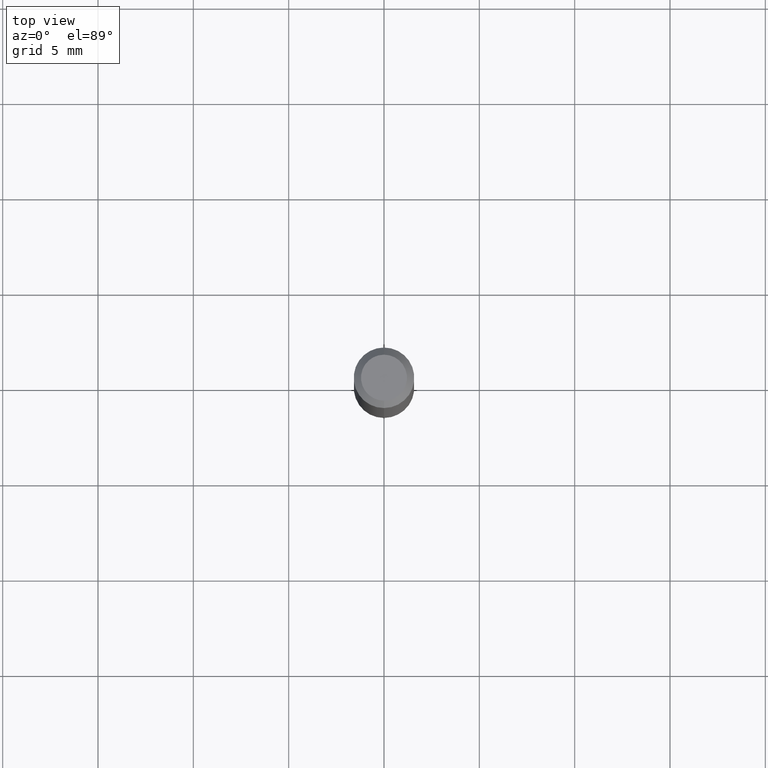
[diagram: clean part render]
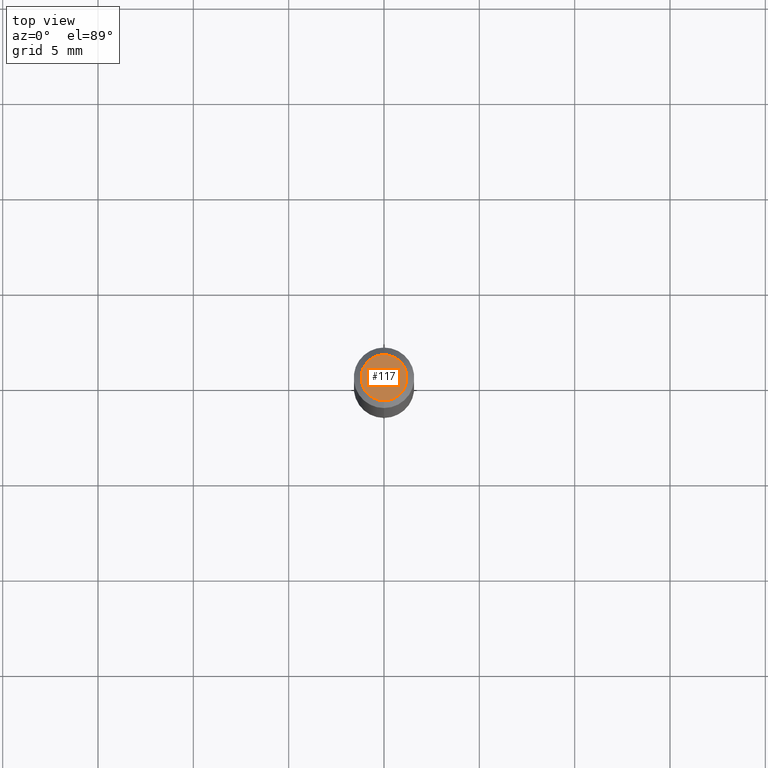
[diagram: same view with one face highlighted and labeled with its STEP entity id]
A machine part, top view. The second image highlights one B-rep face of the part: STEP entity #117.
In plain terms, the highlighted planar face has unit normal (0, -0, -1).
Its self-contained STEP definition (entity closure, byte-faithful):
#17 = AXIS2_PLACEMENT_3D ( 'NONE', #499, #215, #20 ) ;
#20 = DIRECTION ( 'NONE',  ( -6.982962677686266711E-15, -1.000000000000000000, 3.491643151795659524E-15 ) ) ;
#64 = DIRECTION ( 'NONE',  ( -2.445355812804319673E-29, 3.491643151795659130E-15, 1.000000000000000000 ) ) ;
#70 = AXIS2_PLACEMENT_3D ( 'NONE', #289, #461, #219 ) ;
#78 = CARTESIAN_POINT ( 'NONE',  ( 3.840629472727447874E-16, 0.04749999999999999362, -2.313455976474456035E-16 ) ) ;
#95 = EDGE_LOOP ( 'NONE', ( #485, #426 ) ) ;
#117 = ADVANCED_FACE ( 'NONE', ( #323 ), #144, .F. ) ;
#131 = CIRCLE ( 'NONE', #17, 0.04749999999999999362 ) ;
#144 = PLANE ( 'NONE',  #70 ) ;
#215 = DIRECTION ( 'NONE',  ( -2.445355812804319673E-29, 3.491643151795659130E-15, 1.000000000000000000 ) ) ;
#219 = DIRECTION ( 'NONE',  ( 6.982962677686265922E-15, 1.000000000000000000, -3.491643151795659524E-15 ) ) ;
#221 = EDGE_CURVE ( 'NONE', #448, #385, #131, .T. ) ;
#228 = EDGE_CURVE ( 'NONE', #385, #448, #337, .T. ) ;
#273 = AXIS2_PLACEMENT_3D ( 'NONE', #460, #64, #326 ) ;
#289 = CARTESIAN_POINT ( 'NONE',  ( 3.316907271900976096E-16, 0.04749999999999999362, -1.985993236788697051E-16 ) ) ;
#323 = FACE_OUTER_BOUND ( 'NONE', #95, .T. ) ;
#326 = DIRECTION ( 'NONE',  ( -6.982962677686266711E-15, -1.000000000000000000, 3.491643151795659524E-15 ) ) ;
#337 = CIRCLE ( 'NONE', #273, 0.04749999999999999362 ) ;
#385 = VERTEX_POINT ( 'NONE', #510 ) ;
#426 = ORIENTED_EDGE ( 'NONE', *, *, #228, .T. ) ;
#448 = VERTEX_POINT ( 'NONE', #78 ) ;
#460 = CARTESIAN_POINT ( 'NONE',  ( 1.601525827934797394E-45, -2.286766064984050453E-31, -6.549254793715180911E-17 ) ) ;
#461 = DIRECTION ( 'NONE',  ( 2.445355812804319113E-29, -3.491643151795659524E-15, -1.000000000000000000 ) ) ;
#485 = ORIENTED_EDGE ( 'NONE', *, *, #221, .T. ) ;
#499 = CARTESIAN_POINT ( 'NONE',  ( 1.601525827934797394E-45, -2.286766064984050453E-31, -6.549254793715180911E-17 ) ) ;
#510 = CARTESIAN_POINT ( 'NONE',  ( -3.773273898774340269E-16, -0.04749999999999999362, 1.003605017731419853E-16 ) ) ;